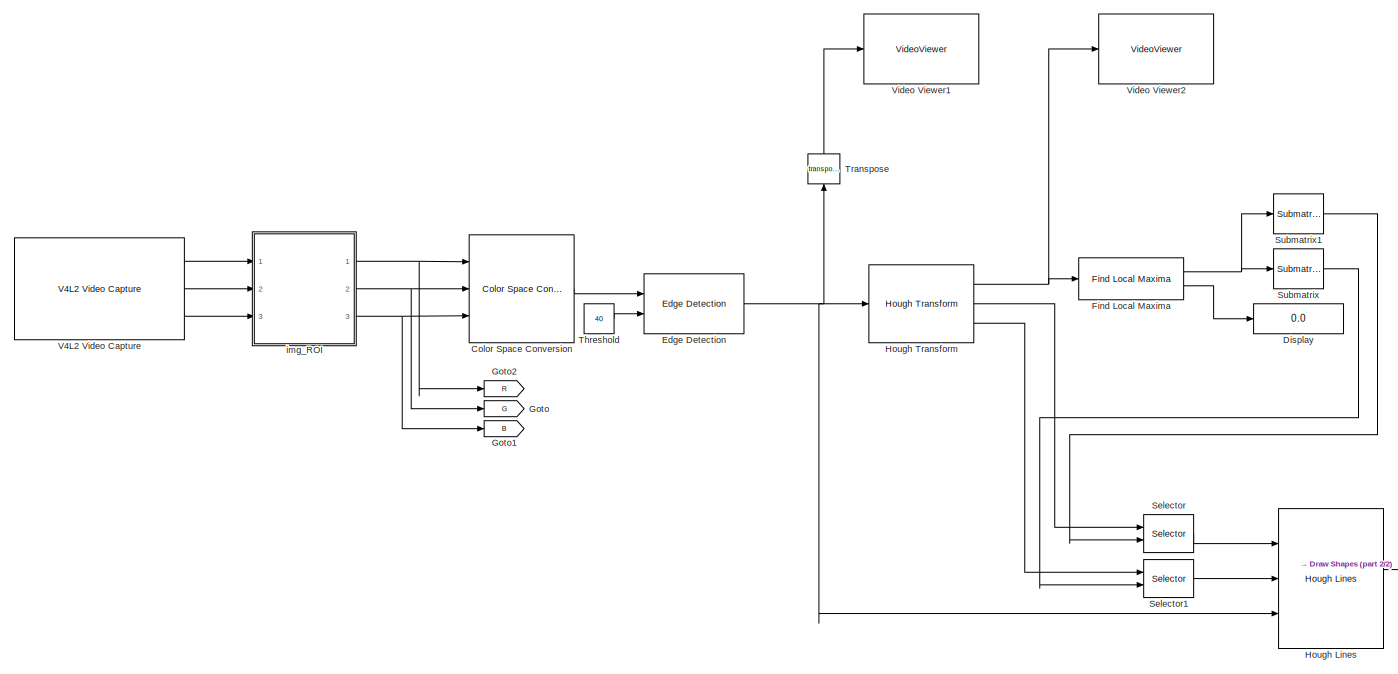
[diagram: root canvas - part 1/2, most of the canvas]
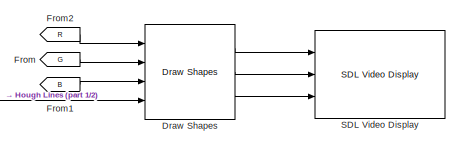
[diagram: root canvas - part 2/2, bottom right region]
MODEL slx_202ee82d1623
KIND model
CONFIG AbsTol = auto
CONFIG EnableMultiTasking = on
CONFIG FixedStep = auto
CONFIG MaxStep = auto
CONFIG MinStep = auto
CONFIG RelTol = 1e-3
CONFIG SampleTimeConstraint = Unconstrained
CONFIG Solver = FixedStepAuto
CONFIG SolverName = FixedStepAuto
CONFIG StartTime = 0.0
CONFIG StopTime = inf
BLOCK [Reference] Color Space Conversion  REF=visionconversions/Color Space
 Conversion
  Ports = [3, 1]
  SourceBlock = visionconversions/Color Space\n Conversion
  SourceProductBaseCode = VP
  SourceProductName = Computer Vision System Toolbox
  SourceType = Color Space Conversion
BLOCK [Display] Display
  Decimation = 1
  Ports = [1]
BLOCK [Reference] Draw Shapes  REF=visiontextngfix/Draw Shapes
  Ports = [4, 3]
  SourceBlock = visiontextngfix/Draw Shapes
  SourceProductBaseCode = VP
  SourceProductName = Computer Vision System Toolbox
  SourceType = Draw Shapes
BLOCK [Reference] Edge Detection  REF=visionanalysis/Edge Detection
  Ports = [2, 1]
  SourceBlock = visionanalysis/Edge Detection
  SourceProductBaseCode = VP
  SourceProductName = Computer Vision System Toolbox
  SourceType = Edge Detection
BLOCK [Reference] Find Local Maxima  REF=visionstatistics/Find Local Maxima
  Ports = [1, 2]
  SourceBlock = visionstatistics/Find Local Maxima
  SourceProductBaseCode = VP
  SourceProductName = Computer Vision System Toolbox
  SourceType = Find Local Maxima
BLOCK [From] From
  GotoTag = G
BLOCK [From] From1
  GotoTag = B
BLOCK [From] From2
  GotoTag = R
BLOCK [Goto] Goto
  GotoTag = G
BLOCK [Goto] Goto1
  GotoTag = B
BLOCK [Goto] Goto2
  GotoTag = R
BLOCK [Reference] Hough Lines  REF=visiontransforms/Hough Lines
  Ports = [3, 1]
  SourceBlock = visiontransforms/Hough Lines
  SourceProductBaseCode = VP
  SourceProductName = Computer Vision System Toolbox
  SourceType = Hough Lines
BLOCK [Reference] Hough Transform  REF=visiontransforms/Hough Transform
  Ports = [1, 3]
  SourceBlock = visiontransforms/Hough Transform
  SourceProductBaseCode = VP
  SourceProductName = Computer Vision System Toolbox
  SourceType = Hough Transform
BLOCK [Reference] SDL Video Display  REF=embdlinuxlib/SDL Video Display
  Ports = [3]
  SourceBlock = embdlinuxlib/SDL Video Display
  SourceProductBaseCode = RASPPI
  SourceProductName = Simulink Support Package for Raspberry Pi Hardware
  SourceType = SDL Video Display
BLOCK [Selector] Selector
  IndexOptions = Index vector (port)
  Indices = [1 3]
  InputPortWidth = 90
  OutputSizes = 46
  Ports = [2, 1]
BLOCK [Selector] Selector1
  IndexOptions = Index vector (port)
  Indices = [1 3]
  InputPortWidth = 163
  OutputSizes = 1
  Ports = [2, 1]
BLOCK [Reference] Submatrix  REF=dspmtrx3/Submatrix
  Ports = [1, 1]
  SourceBlock = dspmtrx3/Submatrix
  SourceProductBaseCode = DS
  SourceProductName = DSP System Toolbox
  SourceType = Submatrix
BLOCK [Reference] Submatrix1  REF=dspmtrx3/Submatrix
  Ports = [1, 1]
  SourceBlock = dspmtrx3/Submatrix
  SourceProductBaseCode = DS
  SourceProductName = DSP System Toolbox
  SourceType = Submatrix
BLOCK [Constant] Threshold
  LockScale = on
  OutDataTypeStr = uint8
  Value = 40
BLOCK [Math] Transpose
  Operator = transpose
  Ports = [1, 1]
BLOCK [Reference] V4L2 Video Capture  REF=embdlinuxlib/V4L2 Video Capture
  Ports = [0, 3]
  SourceBlock = embdlinuxlib/V4L2 Video Capture
  SourceProductBaseCode = RASPPI
  SourceProductName = Simulink Support Package for Raspberry Pi Hardware
  SourceType = V4L2 Video Capture
BLOCK [VideoViewer] Video Viewer1
  FigPos = [1922 882 958 469]
  Ports = [1]
  ScopeSpecificationString = vipscopes.VideoViewerScopeCfg('CurrentConfiguration', extmgr.ConfigurationSet(extmgr.Configuration('Core','General UI',true),extmgr.Configuration('Core','Source UI',true),extmgr.Configuration('Sources','WiredSimulink',true),extmgr.Configuration('Visuals','Video',true),extmgr.Configuration('Tools','Image Navigation Tools',true,'Magnification',3),extmgr.Configuration('Tools','Image Tool',true),extmg...<+120ch>
  colormapValue = gray(256)
BLOCK [VideoViewer] Video Viewer2
  FigPos = [2882 882 958 1049]
  Ports = [1]
  ScopeSpecificationString = vipscopes.VideoViewerScopeCfg('CurrentConfiguration', extmgr.ConfigurationSet(extmgr.Configuration('Core','General UI',true),extmgr.Configuration('Core','Source UI',true),extmgr.Configuration('Sources','WiredSimulink',true),extmgr.Configuration('Visuals','Video',true),extmgr.Configuration('Tools','Image Navigation Tools',true,'Magnification',3),extmgr.Configuration('Tools','Image Tool',true),extmg...<+121ch>
  colormapValue = gray(256)
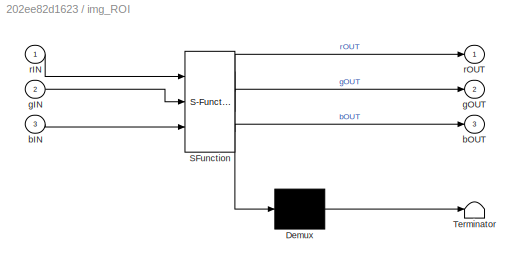
BLOCK [SubSystem] img_ROI
  ErrorFcn = Stateflow.Translate.translate
  PermitHierarchicalResolution = ExplicitOnly
  Ports = [3, 3]
  RequestExecContextInheritance = off
  SFBlockType = MATLAB Function
  TreatAsAtomicUnit = on
BLOCK [Demux] img_ROI/ Demux 
  Outputs = 1
  Ports = [1, 1]
BLOCK [S-Function] img_ROI/ SFunction 
  EnableBusSupport = on
  FunctionName = sf_sfun
  PortCounts = [3 4]
  Ports = [3, 4]
  SFcnIsStateOwnerBlock = off
  SFunctionDeploymentMode = off
  Tag = Stateflow S-Function lanedetection_rgb 1
BLOCK [Terminator] img_ROI/ Terminator 
BLOCK [Inport] img_ROI/bIN
  IconDisplay = Port number
  Port = 3
BLOCK [Outport] img_ROI/bOUT
  IconDisplay = Port number
  Port = 3
BLOCK [Inport] img_ROI/gIN
  IconDisplay = Port number
  Port = 2
BLOCK [Outport] img_ROI/gOUT
  IconDisplay = Port number
  Port = 2
BLOCK [Inport] img_ROI/rIN
  IconDisplay = Port number
BLOCK [Outport] img_ROI/rOUT
  IconDisplay = Port number
LINE Color Space Conversion:1 -> Edge Detection:1
LINE Draw Shapes:1 -> SDL Video Display:1
LINE Draw Shapes:2 -> SDL Video Display:2
LINE Draw Shapes:3 -> SDL Video Display:3
NET Edge Detection:1 -> Hough Lines:3, Hough Transform:1, Transpose:1
NET Find Local Maxima:1 -> Submatrix1:1, Submatrix:1
LINE Find Local Maxima:2 -> Display:1
LINE From1:1 -> Draw Shapes:3
LINE From2:1 -> Draw Shapes:1
LINE From:1 -> Draw Shapes:2
LINE Hough Lines:1 -> Draw Shapes:4
NET Hough Transform:1 -> Find Local Maxima:1, Video Viewer2:1
LINE Hough Transform:2 -> Selector:1
LINE Hough Transform:3 -> Selector1:1
LINE Selector1:1 -> Hough Lines:2
LINE Selector:1 -> Hough Lines:1
LINE Submatrix1:1 -> Selector:2
LINE Submatrix:1 -> Selector1:2
LINE Threshold:1 -> Edge Detection:2
LINE Transpose:1 -> Video Viewer1:1
LINE V4L2 Video Capture:1 -> img_ROI:1
LINE V4L2 Video Capture:2 -> img_ROI:2
LINE V4L2 Video Capture:3 -> img_ROI:3
NET img_ROI:1 -> Color Space Conversion:1, Goto2:1
NET img_ROI:2 -> Color Space Conversion:2, Goto:1
NET img_ROI:3 -> Color Space Conversion:3, Goto1:1
note: NET lines group one-source signal fan-out (src -> all destinations, sorted); 1:1 wires keep LINE
CHART img_ROI states=1 transitions=1
  STATE_LABEL 'eML_blk_kernel()'
  STATE_LABEL 'SCRIPT:\nfunction [rOUT, gOUT, bOUT]  = imgROI(rIN, gIN, bIN)\n\n    % 160x120\n    %rOUT = rIN(2:159, 48:83);\n    %gOUT = gIN(2:159, 48:83);\n    %bOUT = bIN(2:159, 48:83);\n    \n    % 320 x 240\n    rOUT = rIN(3:318, 96:165);\n    gOUT = gIN(3:318, 96:165);\n    bOUT = bIN(3:318, 96:165);\n    \n    % 800 x 600\n    %imgOUT = imgIN(0:799 ,300:499);\n\nend'
